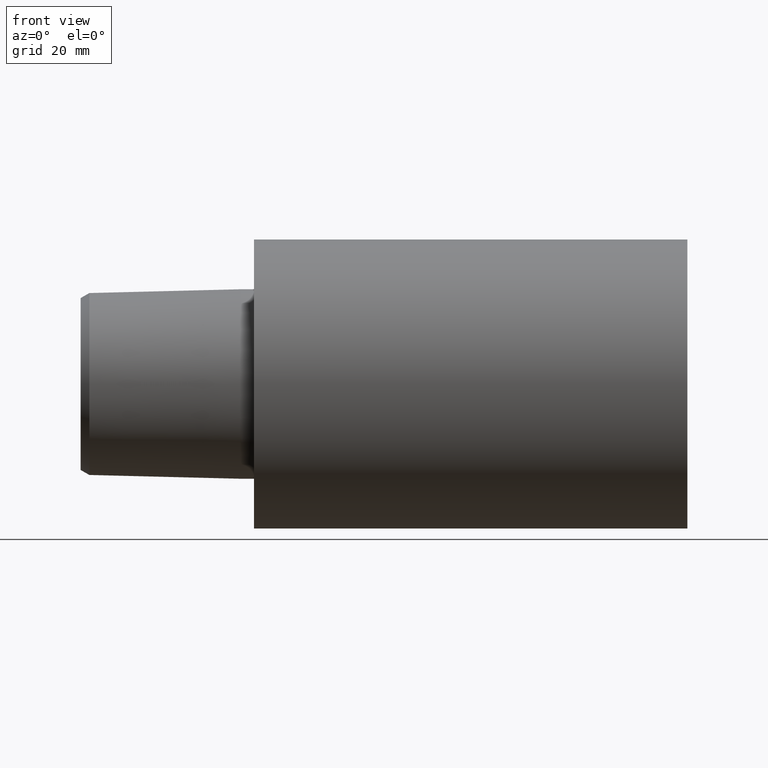
[diagram: clean part render]
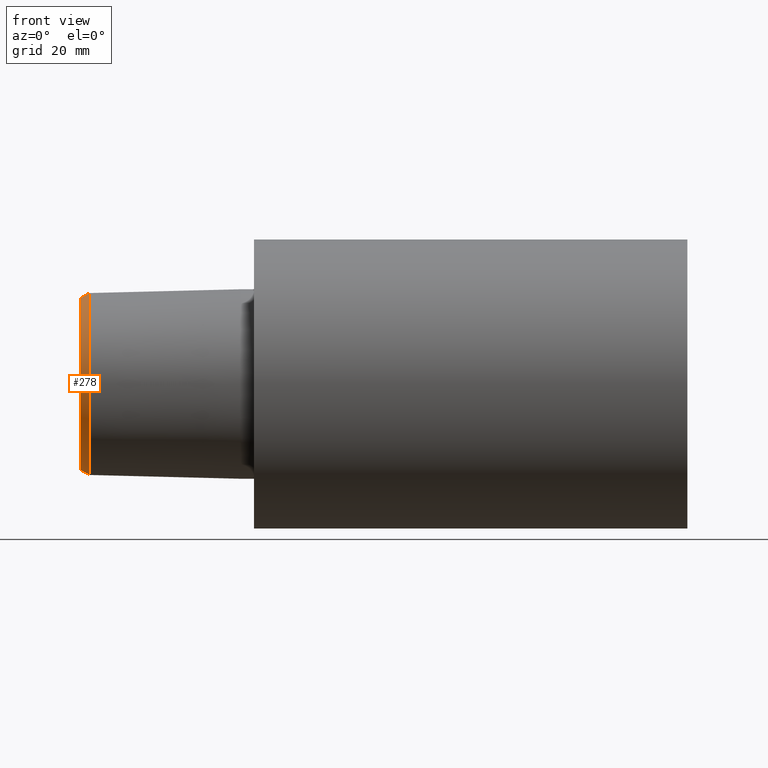
[diagram: same view with one face highlighted and labeled with its STEP entity id]
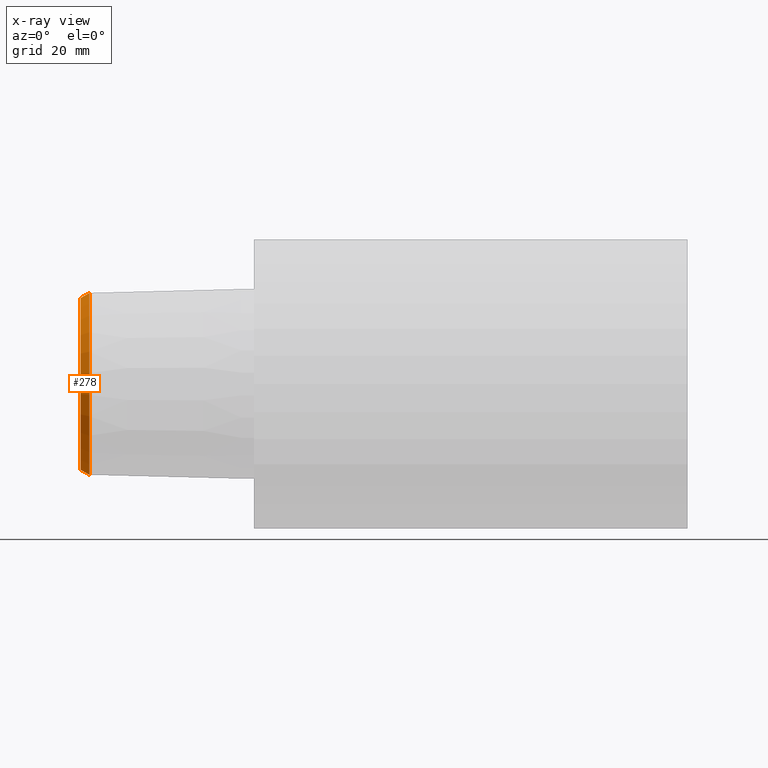
[diagram: x-ray of the same camera — body ghosted, the highlighted face saturated]
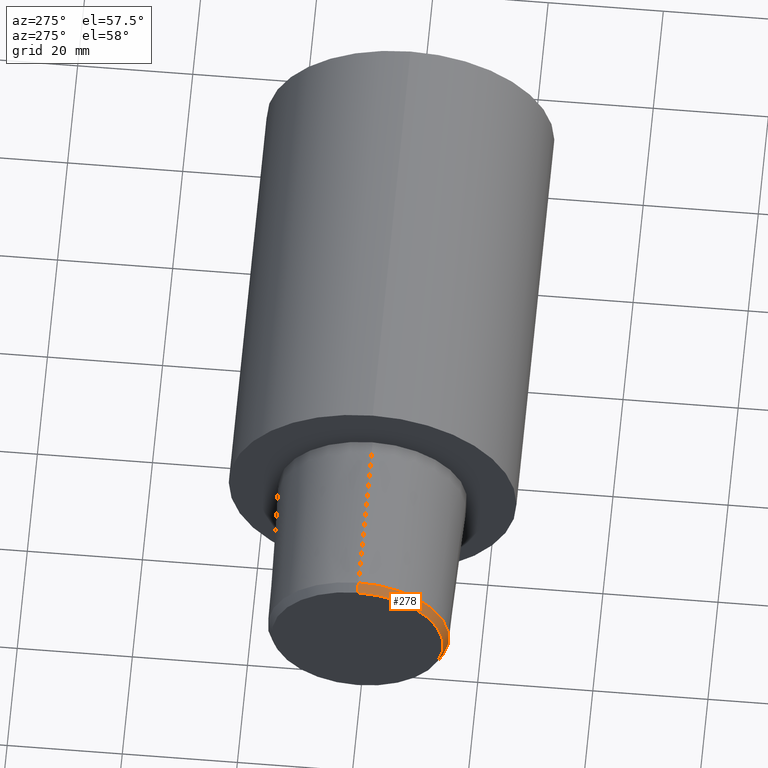
[diagram: same view with one face highlighted and labeled with its STEP entity id]
A machine part, front view. The second image highlights one B-rep face of the part: STEP entity #278.
The next image is the same camera in x-ray: the body ghosted, the highlighted face saturated — about 0% of this face is hidden behind the body in this view.
A second angle (auxiliary view) of the same face is appended — the face is thin or edge-on in the first view.
In plain terms, the highlighted conical surface has half-angle 30 deg.
Its self-contained STEP definition (entity closure, byte-faithful):
#4 = CARTESIAN_POINT ( 'NONE',  ( -28.49999997092999848, 0.000000000000000000, -15.74244386394270734 ) ) ;
#5 = EDGE_CURVE ( 'NONE', #42, #72, #73, .T. ) ;
#7 = DIRECTION ( 'NONE',  ( 1.000000000000000000, 0.000000000000000000, 0.000000000000000000 ) ) ;
#19 = EDGE_CURVE ( 'NONE', #42, #262, #158, .T. ) ;
#24 = DIRECTION ( 'NONE',  ( 0.8660254037844387076, 0.000000000000000000, -0.4999999999999998890 ) ) ;
#26 = AXIS2_PLACEMENT_3D ( 'NONE', #46, #207, #291 ) ;
#36 = AXIS2_PLACEMENT_3D ( 'NONE', #165, #244, #112 ) ;
#42 = VERTEX_POINT ( 'NONE', #264 ) ;
#46 = CARTESIAN_POINT ( 'NONE',  ( -29.99999996776130118, 0.000000000000000000, 0.000000000000000000 ) ) ;
#49 = CIRCLE ( 'NONE', #95, 15.74244386394270734 ) ;
#53 = EDGE_CURVE ( 'NONE', #72, #287, #128, .T. ) ;
#72 = VERTEX_POINT ( 'NONE', #181 ) ;
#73 = CIRCLE ( 'NONE', #26, 14.87641846198772733 ) ;
#95 = AXIS2_PLACEMENT_3D ( 'NONE', #124, #7, #198 ) ;
#112 = DIRECTION ( 'NONE',  ( 0.000000000000000000, 0.000000000000000000, -1.000000000000000000 ) ) ;
#124 = CARTESIAN_POINT ( 'NONE',  ( -28.49999997092999848, 0.000000000000000000, 0.000000000000000000 ) ) ;
#128 = LINE ( 'NONE', #200, #153 ) ;
#130 = VECTOR ( 'NONE', #184, 1000.000000000000000 ) ;
#138 = CARTESIAN_POINT ( 'NONE',  ( -28.49999997092999848, 1.927893348873434490E-15, 15.74244386394270734 ) ) ;
#153 = VECTOR ( 'NONE', #24, 1000.000000000000000 ) ;
#158 = LINE ( 'NONE', #204, #130 ) ;
#165 = CARTESIAN_POINT ( 'NONE',  ( -28.49999997092999848, 0.000000000000000000, 0.000000000000000000 ) ) ;
#170 = CONICAL_SURFACE ( 'NONE', #36, 15.74244386394270734, 0.5235987755982987046 ) ;
#177 = ORIENTED_EDGE ( 'NONE', *, *, #19, .F. ) ;
#181 = CARTESIAN_POINT ( 'NONE',  ( -29.99999996776130118, 0.000000000000000000, -14.87641846198772733 ) ) ;
#184 = DIRECTION ( 'NONE',  ( 0.8660254037844387076, 6.123233995736748780E-17, 0.4999999999999998890 ) ) ;
#198 = DIRECTION ( 'NONE',  ( 0.000000000000000000, 0.000000000000000000, -1.000000000000000000 ) ) ;
#200 = CARTESIAN_POINT ( 'NONE',  ( -28.49999997092999848, 0.000000000000000000, -15.74244386394270734 ) ) ;
#204 = CARTESIAN_POINT ( 'NONE',  ( -28.49999997092999848, 1.927893348873434490E-15, 15.74244386394270734 ) ) ;
#207 = DIRECTION ( 'NONE',  ( 1.000000000000000000, 0.000000000000000000, 0.000000000000000000 ) ) ;
#234 = ORIENTED_EDGE ( 'NONE', *, *, #352, .F. ) ;
#244 = DIRECTION ( 'NONE',  ( 1.000000000000000000, 0.000000000000000000, 0.000000000000000000 ) ) ;
#255 = ORIENTED_EDGE ( 'NONE', *, *, #53, .T. ) ;
#257 = ORIENTED_EDGE ( 'NONE', *, *, #5, .T. ) ;
#262 = VERTEX_POINT ( 'NONE', #138 ) ;
#264 = CARTESIAN_POINT ( 'NONE',  ( -29.99999996776130118, 1.874864587049208810E-15, 14.87641846198772733 ) ) ;
#278 = ADVANCED_FACE ( 'NONE', ( #305 ), #170, .T. ) ;
#286 = EDGE_LOOP ( 'NONE', ( #177, #257, #255, #234 ) ) ;
#287 = VERTEX_POINT ( 'NONE', #4 ) ;
#291 = DIRECTION ( 'NONE',  ( 0.000000000000000000, 0.000000000000000000, -1.000000000000000000 ) ) ;
#305 = FACE_OUTER_BOUND ( 'NONE', #286, .T. ) ;
#352 = EDGE_CURVE ( 'NONE', #262, #287, #49, .T. ) ;